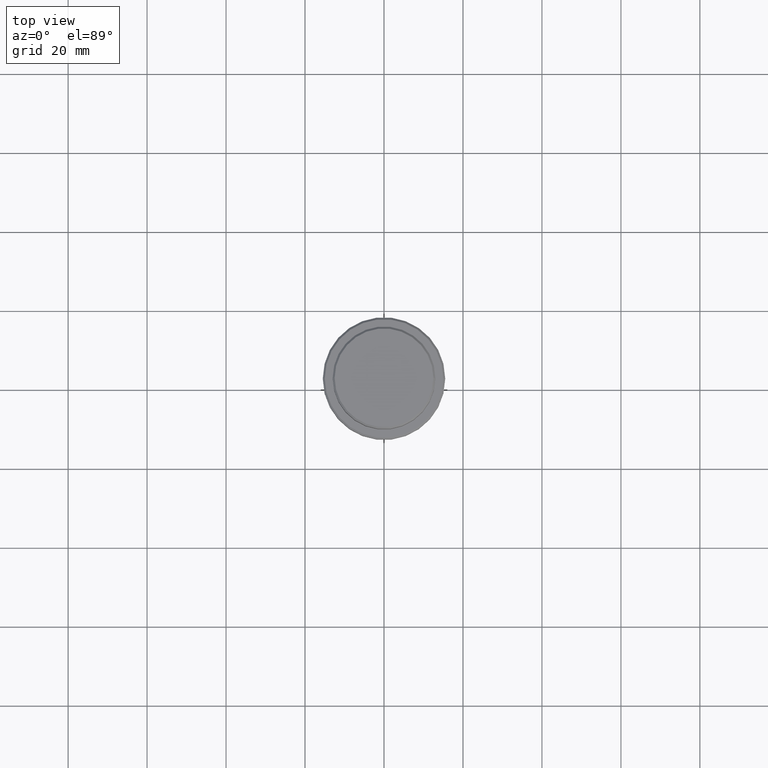
[diagram: clean part render]
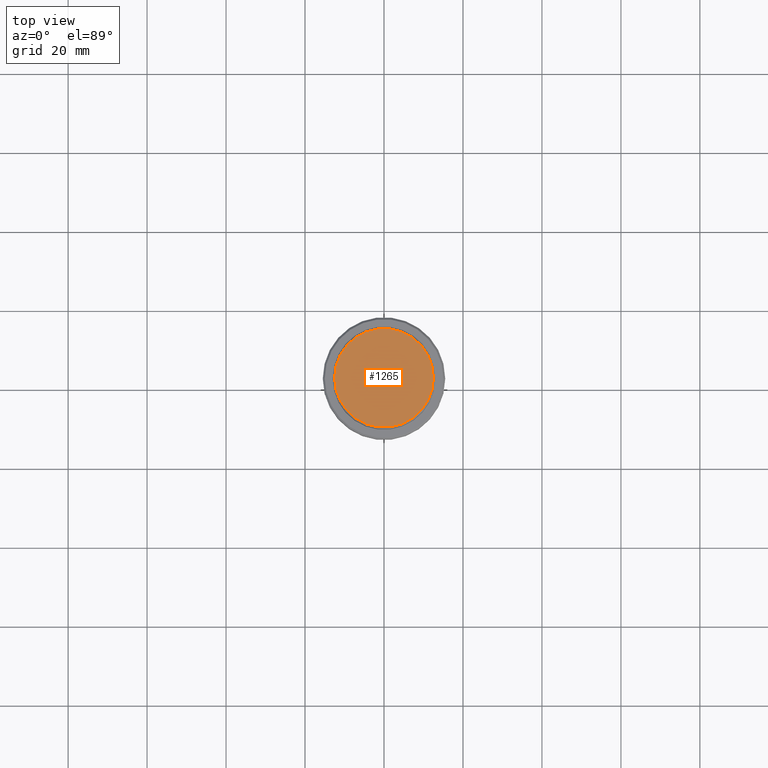
[diagram: same view with one face highlighted and labeled with its STEP entity id]
A machine part, top view. The second image highlights one B-rep face of the part: STEP entity #1265.
In plain terms, the highlighted planar face has unit normal (0, -0, 1).
Its self-contained STEP definition (entity closure, byte-faithful):
#106 = ORIENTED_EDGE ( 'NONE', *, *, #628, .T. ) ;
#155 = EDGE_LOOP ( 'NONE', ( #106, #236 ) ) ;
#173 = FACE_OUTER_BOUND ( 'NONE', #155, .T. ) ;
#236 = ORIENTED_EDGE ( 'NONE', *, *, #509, .T. ) ;
#274 = DIRECTION ( 'NONE',  ( 1.000000000000000000, 0.000000000000000000, 0.000000000000000000 ) ) ;
#424 = CARTESIAN_POINT ( 'NONE',  ( 0.000000000000000000, 0.000000000000000000, 0.000000000000000000 ) ) ;
#501 = DIRECTION ( 'NONE',  ( -0.000000000000000000, -0.000000000000000000, 1.000000000000000000 ) ) ;
#509 = EDGE_CURVE ( 'NONE', #830, #769, #1006, .T. ) ;
#541 = CARTESIAN_POINT ( 'NONE',  ( 0.000000000000000000, 0.000000000000000000, 0.000000000000000000 ) ) ;
#561 = DIRECTION ( 'NONE',  ( 1.000000000000000000, 0.000000000000000000, 0.000000000000000000 ) ) ;
#611 = AXIS2_PLACEMENT_3D ( 'NONE', #915, #501, #274 ) ;
#628 = EDGE_CURVE ( 'NONE', #769, #830, #1144, .T. ) ;
#769 = VERTEX_POINT ( 'NONE', #1295 ) ;
#830 = VERTEX_POINT ( 'NONE', #974 ) ;
#849 = AXIS2_PLACEMENT_3D ( 'NONE', #424, #1105, #561 ) ;
#882 = PLANE ( 'NONE',  #899 ) ;
#885 = DIRECTION ( 'NONE',  ( 1.000000000000000000, 0.000000000000000000, 0.000000000000000000 ) ) ;
#899 = AXIS2_PLACEMENT_3D ( 'NONE', #541, #1182, #885 ) ;
#915 = CARTESIAN_POINT ( 'NONE',  ( 0.000000000000000000, 0.000000000000000000, 0.000000000000000000 ) ) ;
#974 = CARTESIAN_POINT ( 'NONE',  ( 12.50000000000001243, 1.561424668912876097E-15, 0.000000000000000000 ) ) ;
#1006 = CIRCLE ( 'NONE', #849, 12.50000000000001243 ) ;
#1105 = DIRECTION ( 'NONE',  ( -0.000000000000000000, -0.000000000000000000, 1.000000000000000000 ) ) ;
#1144 = CIRCLE ( 'NONE', #611, 12.50000000000001243 ) ;
#1182 = DIRECTION ( 'NONE',  ( 0.000000000000000000, -0.000000000000000000, 1.000000000000000000 ) ) ;
#1265 = ADVANCED_FACE ( 'NONE', ( #173 ), #882, .T. ) ;
#1295 = CARTESIAN_POINT ( 'NONE',  ( -12.50000000000001243, 0.000000000000000000, 0.000000000000000000 ) ) ;